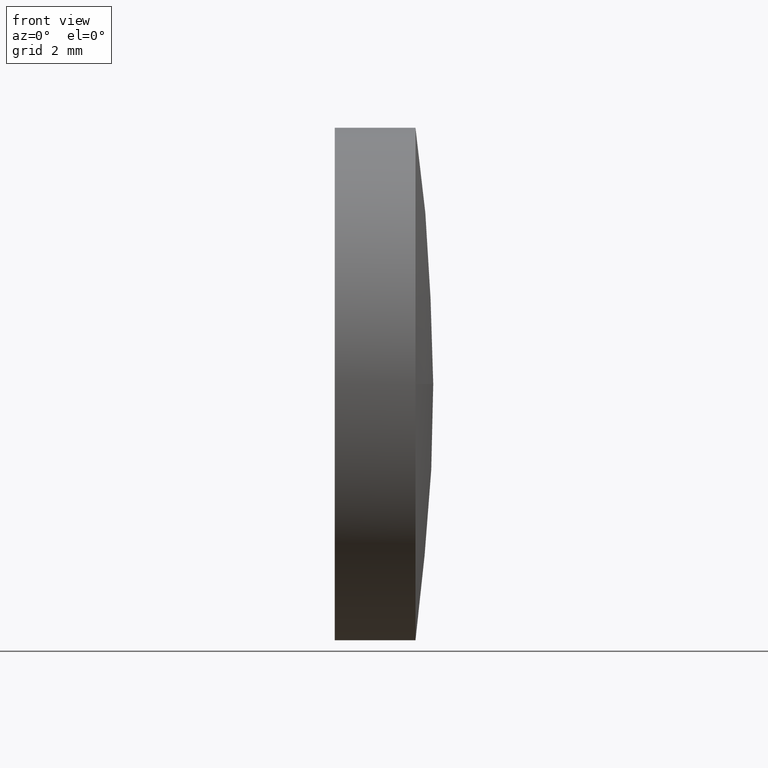
[diagram: clean part render]
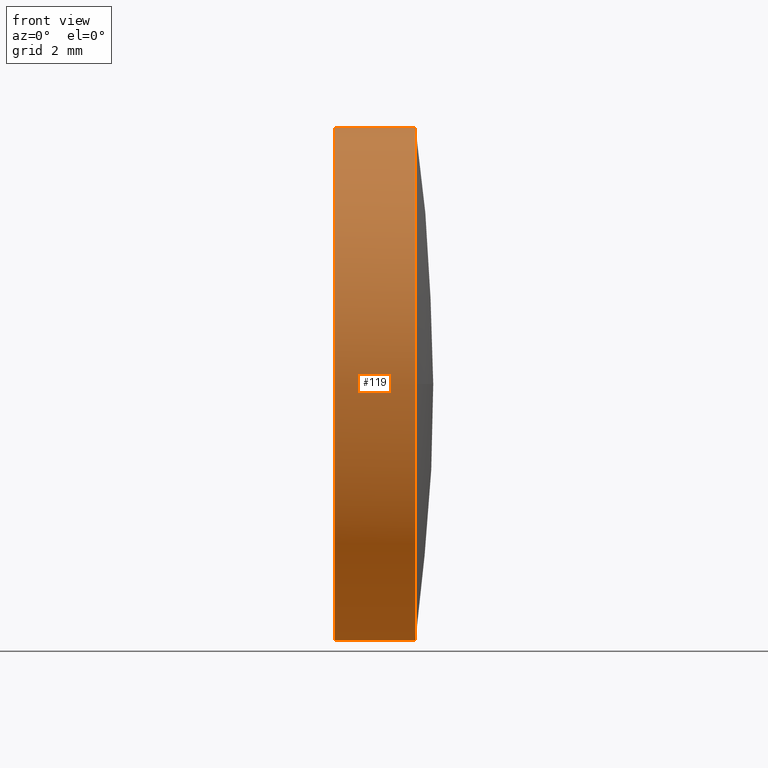
[diagram: same view with one face highlighted and labeled with its STEP entity id]
A machine part, front view. The second image highlights one B-rep face of the part: STEP entity #119.
In plain terms, the highlighted cylindrical surface (partial cylindrical patch) has radius 6.35 mm, axis along (-1, -0, -0).
Its self-contained STEP definition (entity closure, byte-faithful):
#10 = AXIS2_PLACEMENT_3D ( 'NONE', #126, #164, #22 ) ;
#11 = CIRCLE ( 'NONE', #120, 6.349999999999994300 ) ;
#16 = DIRECTION ( 'NONE',  ( -1.000000000000000000, -0.0000000000000000000, -0.0000000000000000000 ) ) ;
#22 = DIRECTION ( 'NONE',  ( 0.0000000000000000000, 0.0000000000000000000, 1.000000000000000000 ) ) ;
#24 = EDGE_CURVE ( 'NONE', #73, #90, #36, .T. ) ;
#27 = CARTESIAN_POINT ( 'NONE',  ( 500.5335289623582800, 27.01923278468612500, -6.349999999999994300 ) ) ;
#28 = EDGE_LOOP ( 'NONE', ( #181, #121, #123, #105, #43 ) ) ;
#32 = CARTESIAN_POINT ( 'NONE',  ( 500.5335289623582800, 27.01923278468612500, 0.0000000000000000000 ) ) ;
#33 = EDGE_CURVE ( 'NONE', #174, #51, #74, .T. ) ;
#36 = CIRCLE ( 'NONE', #42, 6.349999999999994300 ) ;
#42 = AXIS2_PLACEMENT_3D ( 'NONE', #96, #16, #163 ) ;
#43 = ORIENTED_EDGE ( 'NONE', *, *, #133, .F. ) ;
#45 = FACE_OUTER_BOUND ( 'NONE', #28, .T. ) ;
#47 = CARTESIAN_POINT ( 'NONE',  ( 504.8615574523524900, 27.01923278468612500, 6.349999999999994300 ) ) ;
#51 = VERTEX_POINT ( 'NONE', #112 ) ;
#53 = EDGE_CURVE ( 'NONE', #73, #101, #125, .T. ) ;
#63 = CARTESIAN_POINT ( 'NONE',  ( 504.8615574523524900, 27.01923278468612500, -6.349999999999994300 ) ) ;
#73 = VERTEX_POINT ( 'NONE', #63 ) ;
#74 = LINE ( 'NONE', #186, #87 ) ;
#77 = CARTESIAN_POINT ( 'NONE',  ( 504.8615574523524900, 20.66923278468613400, -7.776507174585607400E-016 ) ) ;
#79 = CARTESIAN_POINT ( 'NONE',  ( 502.8615574523524900, 27.01923278468612500, -6.349999999999994300 ) ) ;
#82 = DIRECTION ( 'NONE',  ( 0.0000000000000000000, 0.0000000000000000000, 1.000000000000000000 ) ) ;
#87 = VECTOR ( 'NONE', #110, 1000.000000000000000 ) ;
#89 = EDGE_CURVE ( 'NONE', #90, #174, #11, .T. ) ;
#90 = VERTEX_POINT ( 'NONE', #77 ) ;
#92 = CIRCLE ( 'NONE', #10, 6.349999999999994300 ) ;
#96 = CARTESIAN_POINT ( 'NONE',  ( 504.8615574523524900, 27.01923278468612500, 0.0000000000000000000 ) ) ;
#98 = DIRECTION ( 'NONE',  ( -1.000000000000000000, -0.0000000000000000000, -0.0000000000000000000 ) ) ;
#101 = VERTEX_POINT ( 'NONE', #79 ) ;
#103 = VECTOR ( 'NONE', #152, 1000.000000000000000 ) ;
#105 = ORIENTED_EDGE ( 'NONE', *, *, #33, .T. ) ;
#110 = DIRECTION ( 'NONE',  ( -1.000000000000000000, -0.0000000000000000000, -0.0000000000000000000 ) ) ;
#112 = CARTESIAN_POINT ( 'NONE',  ( 502.8615574523524900, 27.01923278468612500, 6.349999999999994300 ) ) ;
#116 = DIRECTION ( 'NONE',  ( 0.0000000000000000000, 0.0000000000000000000, 1.000000000000000000 ) ) ;
#119 = ADVANCED_FACE ( 'NONE', ( #45 ), #160, .T. ) ;
#120 = AXIS2_PLACEMENT_3D ( 'NONE', #178, #98, #82 ) ;
#121 = ORIENTED_EDGE ( 'NONE', *, *, #24, .T. ) ;
#123 = ORIENTED_EDGE ( 'NONE', *, *, #89, .T. ) ;
#125 = LINE ( 'NONE', #27, #103 ) ;
#126 = CARTESIAN_POINT ( 'NONE',  ( 502.8615574523524900, 27.01923278468612500, 0.0000000000000000000 ) ) ;
#133 = EDGE_CURVE ( 'NONE', #101, #51, #92, .T. ) ;
#137 = AXIS2_PLACEMENT_3D ( 'NONE', #32, #154, #116 ) ;
#152 = DIRECTION ( 'NONE',  ( -1.000000000000000000, -0.0000000000000000000, -0.0000000000000000000 ) ) ;
#154 = DIRECTION ( 'NONE',  ( -1.000000000000000000, -0.0000000000000000000, -0.0000000000000000000 ) ) ;
#160 = CYLINDRICAL_SURFACE ( 'NONE', #137, 6.349999999999994300 ) ;
#163 = DIRECTION ( 'NONE',  ( 0.0000000000000000000, 0.0000000000000000000, 1.000000000000000000 ) ) ;
#164 = DIRECTION ( 'NONE',  ( -1.000000000000000000, -0.0000000000000000000, -0.0000000000000000000 ) ) ;
#174 = VERTEX_POINT ( 'NONE', #47 ) ;
#178 = CARTESIAN_POINT ( 'NONE',  ( 504.8615574523524900, 27.01923278468612500, 0.0000000000000000000 ) ) ;
#181 = ORIENTED_EDGE ( 'NONE', *, *, #53, .F. ) ;
#186 = CARTESIAN_POINT ( 'NONE',  ( 500.5335289623582800, 27.01923278468612500, 6.349999999999994300 ) ) ;